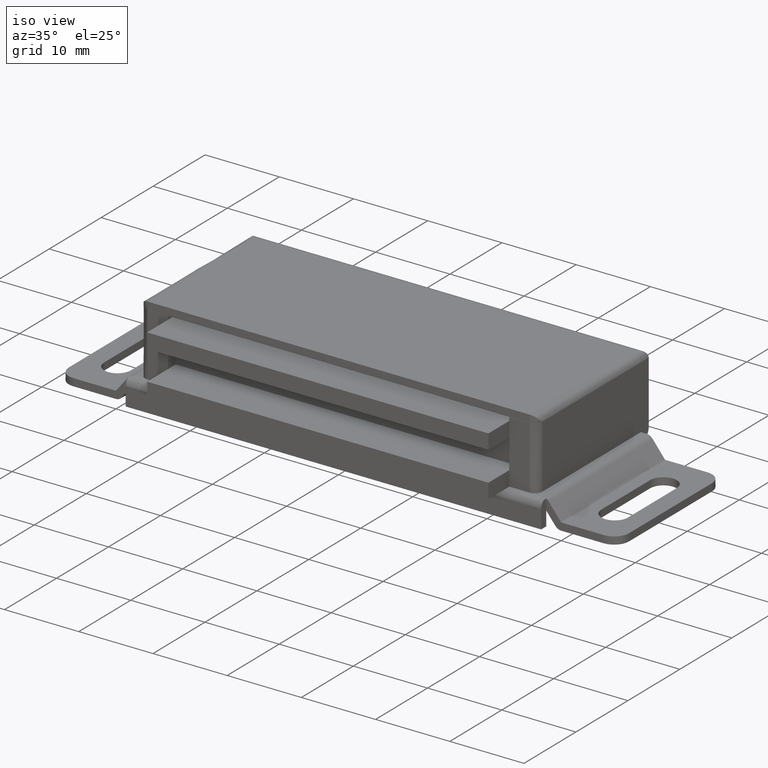
[diagram: clean part render]
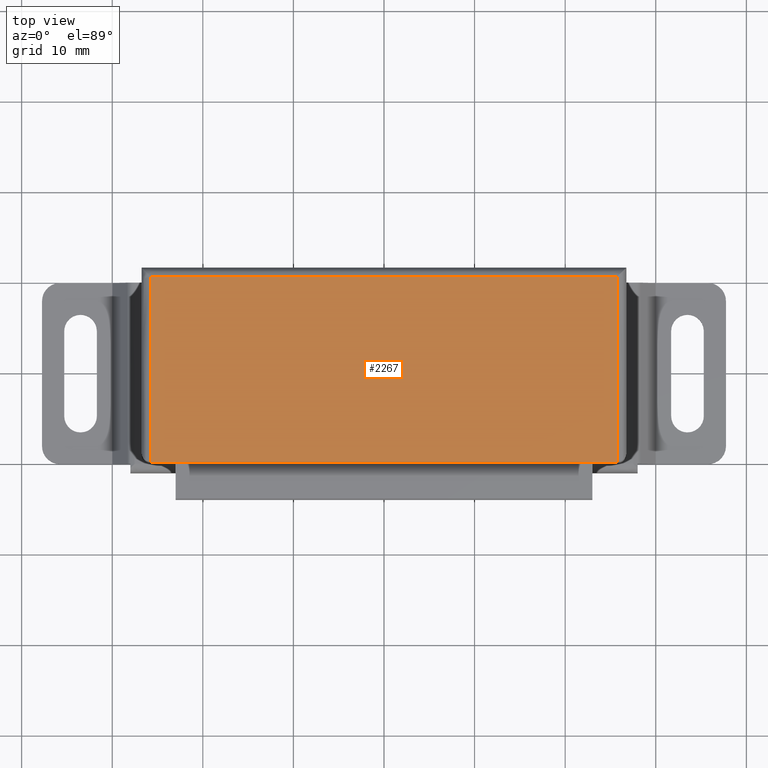
[diagram: tour spotlight — one face highlighted and labeled with its STEP entity id]
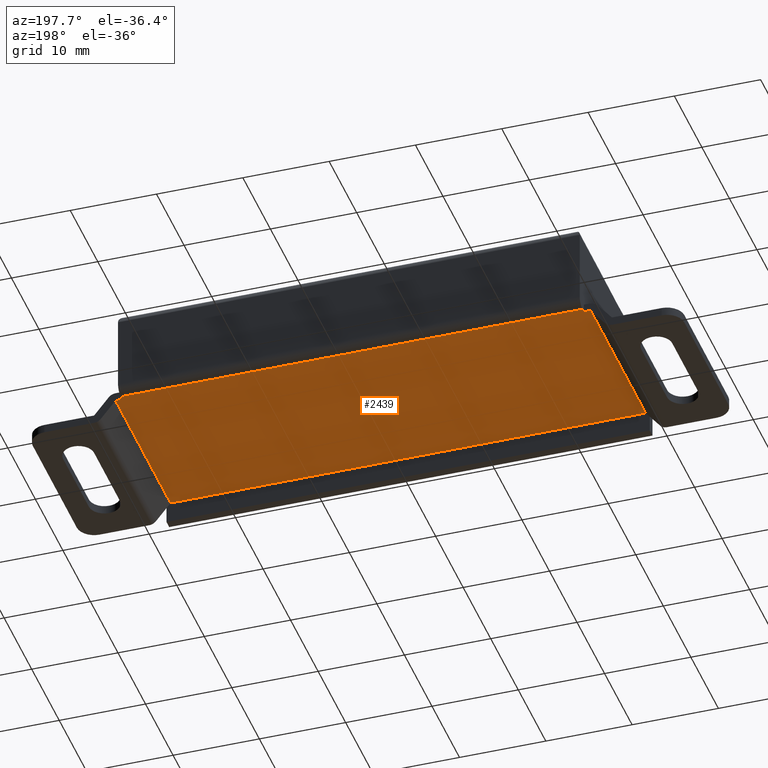
[diagram: tour spotlight — one face highlighted and labeled with its STEP entity id]
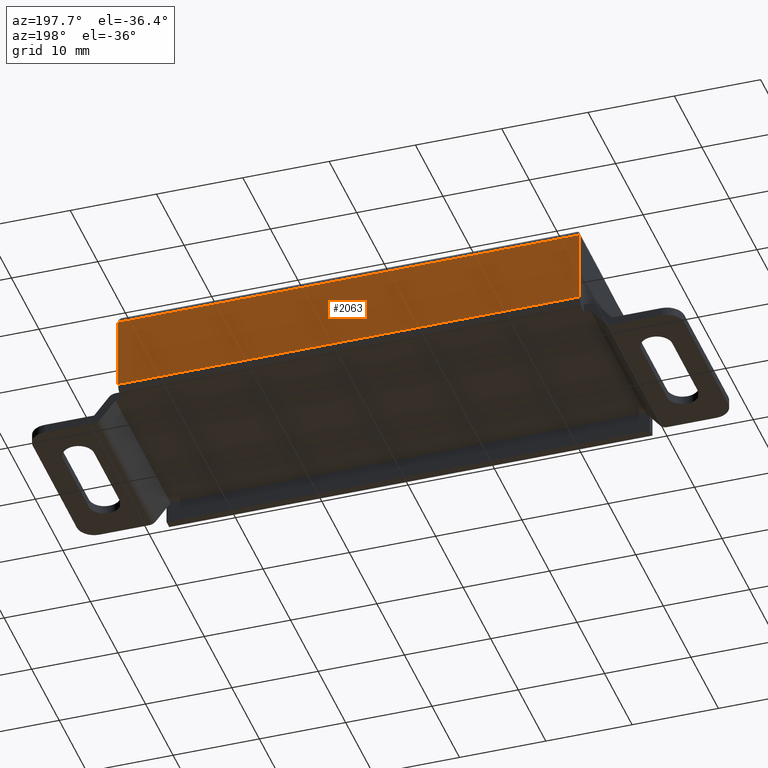
[diagram: tour spotlight — one face highlighted and labeled with its STEP entity id]
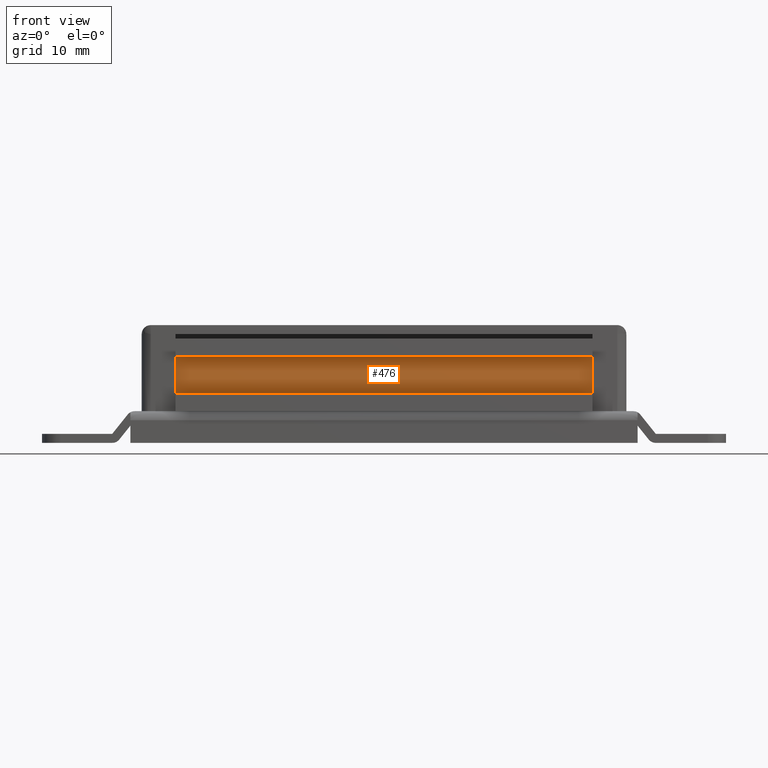
[diagram: tour spotlight — one face highlighted and labeled with its STEP entity id]
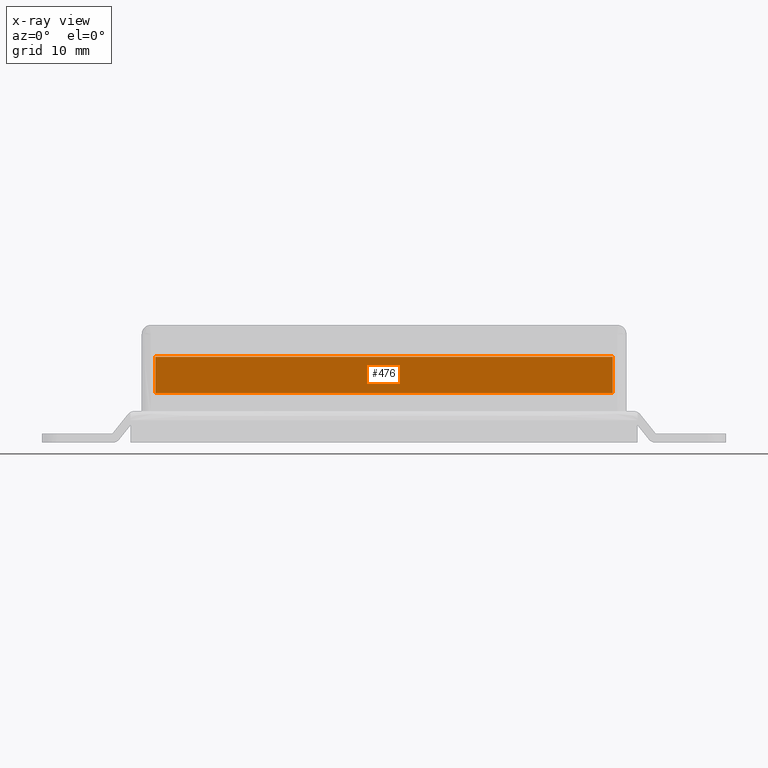
[diagram: x-ray of the same camera — body ghosted, this tour face saturated]
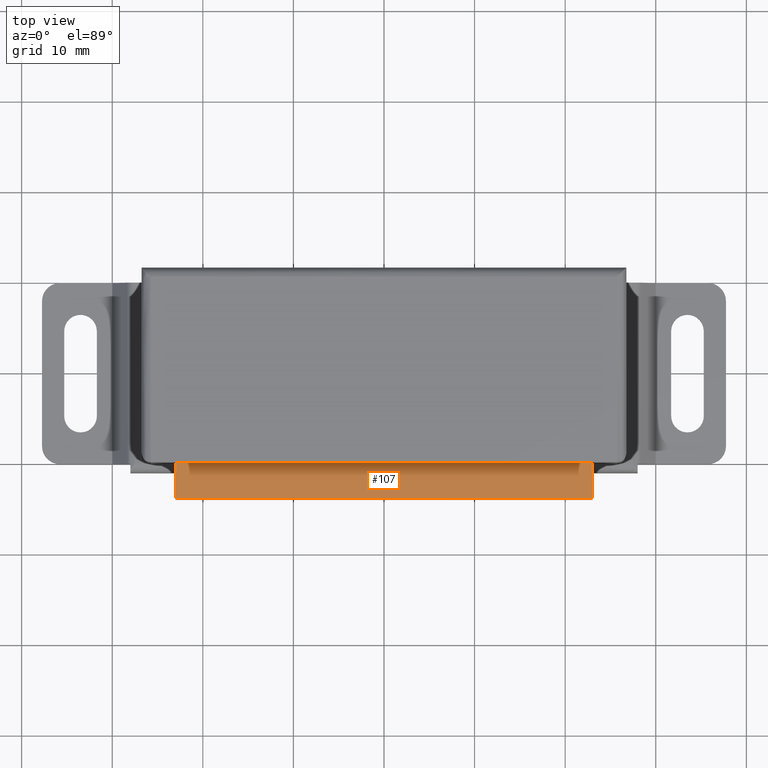
[diagram: tour spotlight — one face highlighted and labeled with its STEP entity id]
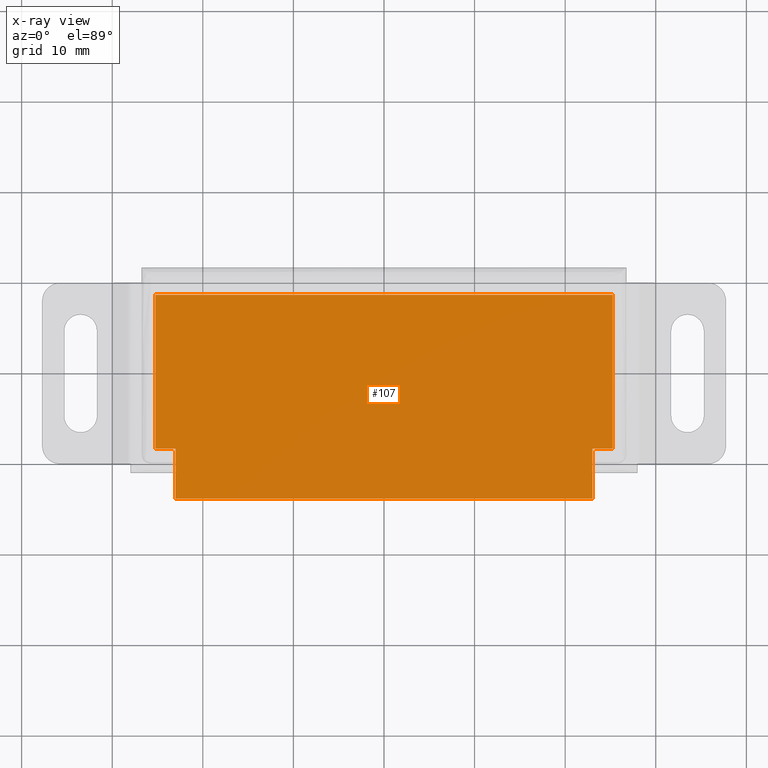
[diagram: x-ray of the same camera — body ghosted, this tour face saturated]
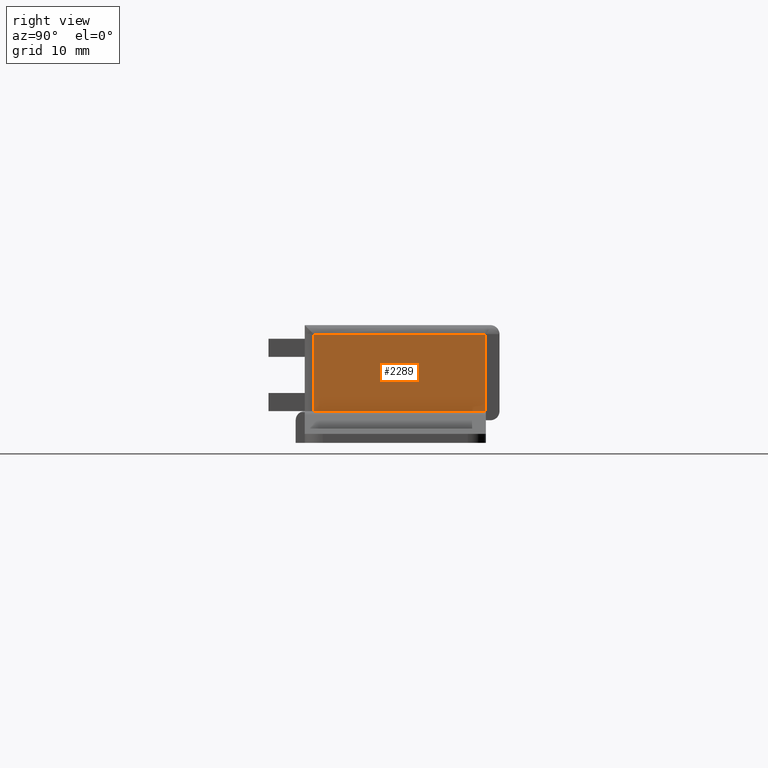
[diagram: tour spotlight — one face highlighted and labeled with its STEP entity id]
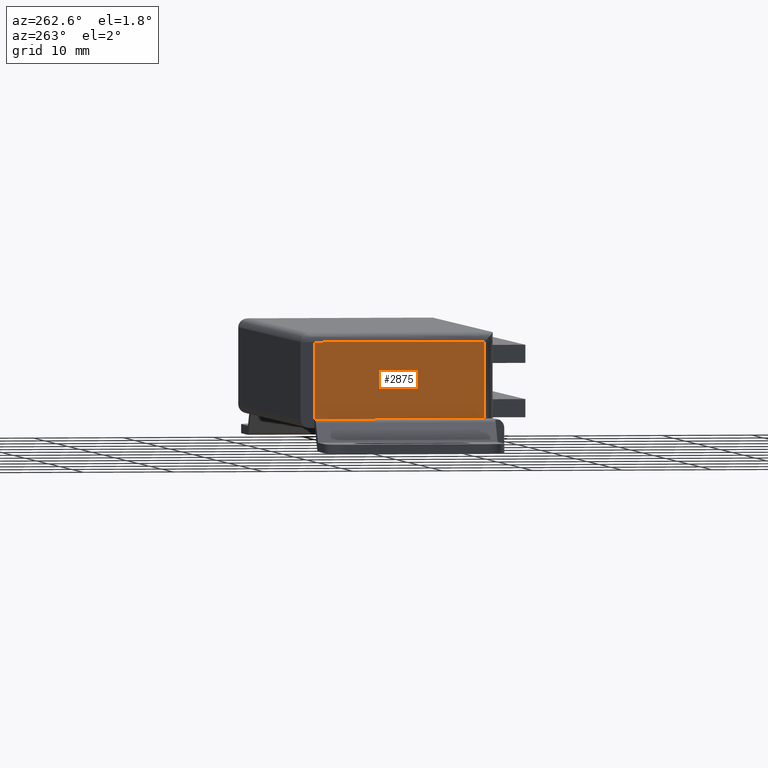
[diagram: tour spotlight — one face highlighted and labeled with its STEP entity id]
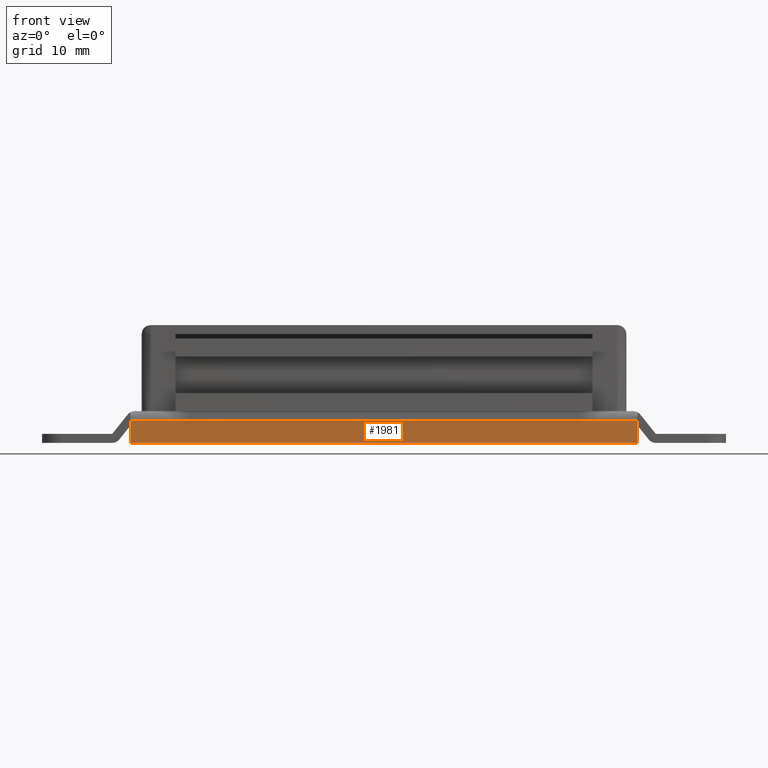
[diagram: tour spotlight — one face highlighted and labeled with its STEP entity id]
A machine part: a face-by-face anatomy tour. The part has 91 B-rep faces; the first image is the clean iso view, then the 8 largest visible faces are spotlighted one at a time (largest first), each with its STEP entity span.

Face 1 — top view, entity #2267. In plain terms, the highlighted face is a freeform B-spline surface patch.
Definition (entity closure, byte-faithful):
#830=CARTESIAN_POINT('',(25.750012999999999,0.499999999999945,12.999984000000101));
#831=VERTEX_POINT('',#830);
#852=CARTESIAN_POINT('',(-25.750012999999999,0.499999999999945,12.999984000000101));
#853=VERTEX_POINT('',#852);
#869=CARTESIAN_POINT('',(25.750012999999999,0.499999999999945,12.999984000000101));
#870=CARTESIAN_POINT('',(-25.750012999999999,0.499999999999945,12.999984000000101));
#871=QUASI_UNIFORM_CURVE('',1,(#869,#870),.UNSPECIFIED.,.F.,.U.);
#872=EDGE_CURVE('',#831,#853,#871,.T.);
#913=CARTESIAN_POINT('',(25.750012999999999,-20.0,12.999984000000101));
#914=VERTEX_POINT('',#913);
#972=CARTESIAN_POINT('',(25.750012999999999,-20.0,12.999984000000101));
#973=CARTESIAN_POINT('',(25.750012999999999,0.499999999999945,12.999984000000101));
#974=QUASI_UNIFORM_CURVE('',1,(#972,#973),.UNSPECIFIED.,.F.,.U.);
#975=EDGE_CURVE('',#914,#831,#974,.T.);
#1007=CARTESIAN_POINT('',(-25.750012999999999,-20.0,12.999984000000101));
#1008=VERTEX_POINT('',#1007);
#1080=CARTESIAN_POINT('',(-25.750012999999999,0.499999999999945,12.999984000000101));
#1081=CARTESIAN_POINT('',(-25.750012999999999,-20.0,12.999984000000101));
#1082=QUASI_UNIFORM_CURVE('',1,(#1080,#1081),.UNSPECIFIED.,.F.,.U.);
#1083=EDGE_CURVE('',#853,#1008,#1082,.T.);
#2252=CARTESIAN_POINT('',(-28.322439682328351,-21.023974960267019,12.999984000000101));
#2253=CARTESIAN_POINT('',(28.322440603220581,-21.023974960267019,12.999984000000101));
#2254=CARTESIAN_POINT('',(-28.322439682328351,1.523975510119812,12.999984000000101));
#2255=CARTESIAN_POINT('',(28.322440603220581,1.523975510119812,12.999984000000101));
#2256=B_SPLINE_SURFACE_WITH_KNOTS('',1,1,((#2252,#2254),(#2253,#2255)),.UNSPECIFIED.,.F.,.F.,.U.,(2,2),(2,2),(0.0,56.644880285548943),(0.0,22.547950470386830),.UNSPECIFIED.);
#2257=ORIENTED_EDGE('',*,*,#975,.T.);
#2258=ORIENTED_EDGE('',*,*,#872,.T.);
#2259=ORIENTED_EDGE('',*,*,#1083,.T.);
#2260=CARTESIAN_POINT('',(25.750012999999999,-20.0,12.999984000000101));
#2261=CARTESIAN_POINT('',(-25.750012999999999,-20.0,12.999984000000101));
#2262=QUASI_UNIFORM_CURVE('',1,(#2260,#2261),.UNSPECIFIED.,.F.,.U.);
#2263=EDGE_CURVE('',#914,#1008,#2262,.T.);
#2264=ORIENTED_EDGE('',*,*,#2263,.F.);
#2265=EDGE_LOOP('',(#2257,#2258,#2259,#2264));
#2266=FACE_OUTER_BOUND('',#2265,.T.);
#2267=ADVANCED_FACE('',(#2266),#2256,.T.);

Face 2 — auxiliary view, entity #2439. In plain terms, the highlighted face is a freeform B-spline surface patch.
Definition (entity closure, byte-faithful):
#771=CARTESIAN_POINT('',(26.750012999999999,0.500000000000000,2.500000000000100));
#772=VERTEX_POINT('',#771);
#786=CARTESIAN_POINT('',(-26.750012999999999,0.500000000000000,2.500000000000100));
#787=VERTEX_POINT('',#786);
#788=CARTESIAN_POINT('',(-26.750012999999999,0.500000000000000,2.500000000000100));
#789=CARTESIAN_POINT('',(26.750012999999999,0.500000000000000,2.500000000000100));
#790=QUASI_UNIFORM_CURVE('',1,(#788,#789),.UNSPECIFIED.,.F.,.U.);
#791=EDGE_CURVE('',#787,#772,#790,.T.);
#1988=CARTESIAN_POINT('',(-27.519349546159599,-20.0,2.500000000000100));
#1989=VERTEX_POINT('',#1988);
#1995=CARTESIAN_POINT('',(27.519367546159199,-20.0,2.500000000000100));
#1996=VERTEX_POINT('',#1995);
#1997=CARTESIAN_POINT('',(-27.519349546159599,-20.0,2.500000000000100));
#1998=CARTESIAN_POINT('',(27.519367546159199,-20.0,2.500000000000100));
#1999=QUASI_UNIFORM_CURVE('',1,(#1997,#1998),.UNSPECIFIED.,.F.,.U.);
#2000=EDGE_CURVE('',#1989,#1996,#1999,.T.);
#2235=CARTESIAN_POINT('',(-26.750012999999999,3.469447E-015,2.500000000000100));
#2236=VERTEX_POINT('',#2235);
#2237=CARTESIAN_POINT('',(-26.750012999999999,3.469447E-015,2.500000000000100));
#2238=CARTESIAN_POINT('',(-26.750012999999999,0.500000000000000,2.500000000000100));
#2239=QUASI_UNIFORM_CURVE('',1,(#2237,#2238),.UNSPECIFIED.,.F.,.U.);
#2240=EDGE_CURVE('',#2236,#787,#2239,.T.);
#2373=CARTESIAN_POINT('',(27.519367546159199,0.0,2.500000000000100));
#2374=VERTEX_POINT('',#2373);
#2380=CARTESIAN_POINT('',(26.750012999999999,3.469447E-015,2.500000000000100));
#2381=VERTEX_POINT('',#2380);
#2382=CARTESIAN_POINT('',(26.750012999999999,3.469447E-015,2.500000000000100));
#2383=CARTESIAN_POINT('',(27.519367546159199,0.0,2.500000000000100));
#2384=QUASI_UNIFORM_CURVE('',1,(#2382,#2383),.UNSPECIFIED.,.F.,.U.);
#2385=EDGE_CURVE('',#2381,#2374,#2384,.T.);
#2406=CARTESIAN_POINT('',(30.268551358244810,-21.023974960267019,2.500000000000100));
#2407=CARTESIAN_POINT('',(-30.268534834498649,-21.023974960267019,2.500000000000100));
#2408=CARTESIAN_POINT('',(30.268551358244810,1.523975510119870,2.500000000000100));
#2409=CARTESIAN_POINT('',(-30.268534834498649,1.523975510119870,2.500000000000100));
#2410=B_SPLINE_SURFACE_WITH_KNOTS('',1,1,((#2406,#2408),(#2407,#2409)),.UNSPECIFIED.,.F.,.F.,.U.,(2,2),(2,2),(0.0,60.537086192743459),(0.0,22.547950470386890),.UNSPECIFIED.);
#2411=ORIENTED_EDGE('',*,*,#2240,.T.);
#2412=ORIENTED_EDGE('',*,*,#791,.T.);
#2413=CARTESIAN_POINT('',(26.750012999999999,3.469447E-015,2.500000000000100));
#2414=CARTESIAN_POINT('',(26.750012999999999,0.500000000000000,2.500000000000100));
#2415=QUASI_UNIFORM_CURVE('',1,(#2413,#2414),.UNSPECIFIED.,.F.,.U.);
#2416=EDGE_CURVE('',#2381,#772,#2415,.T.);
#2417=ORIENTED_EDGE('',*,*,#2416,.F.);
#2418=ORIENTED_EDGE('',*,*,#2385,.T.);
#2419=CARTESIAN_POINT('',(27.519367546159199,0.0,2.500000000000100));
#2420=CARTESIAN_POINT('',(27.519367546159199,-20.0,2.500000000000100));
#2421=QUASI_UNIFORM_CURVE('',1,(#2419,#2420),.UNSPECIFIED.,.F.,.U.);
#2422=EDGE_CURVE('',#2374,#1996,#2421,.T.);
#2423=ORIENTED_EDGE('',*,*,#2422,.T.);
#2424=ORIENTED_EDGE('',*,*,#2000,.F.);
#2425=CARTESIAN_POINT('',(-27.519349546159599,0.0,2.500000000000100));
#2426=VERTEX_POINT('',#2425);
#2427=CARTESIAN_POINT('',(-27.519349546159599,0.0,2.500000000000100));
#2428=CARTESIAN_POINT('',(-27.519349546159599,-20.0,2.500000000000100));
#2429=QUASI_UNIFORM_CURVE('',1,(#2427,#2428),.UNSPECIFIED.,.F.,.U.);
#2430=EDGE_CURVE('',#2426,#1989,#2429,.T.);
#2431=ORIENTED_EDGE('',*,*,#2430,.F.);
#2432=CARTESIAN_POINT('',(-27.519349546159599,0.0,2.500000000000100));
#2433=CARTESIAN_POINT('',(-26.750012999999999,3.469447E-015,2.500000000000100));
#2434=QUASI_UNIFORM_CURVE('',1,(#2432,#2433),.UNSPECIFIED.,.F.,.U.);
#2435=EDGE_CURVE('',#2426,#2236,#2434,.T.);
#2436=ORIENTED_EDGE('',*,*,#2435,.T.);
#2437=EDGE_LOOP('',(#2411,#2412,#2417,#2418,#2423,#2424,#2431,#2436));
#2438=FACE_OUTER_BOUND('',#2437,.T.);
#2439=ADVANCED_FACE('',(#2438),#2410,.T.);

Face 3 — auxiliary view, entity #2063. In plain terms, the highlighted face is a freeform B-spline surface patch.
Definition (entity closure, byte-faithful):
#773=CARTESIAN_POINT('',(26.750012999999999,1.500000000000000,3.500000000000100));
#774=VERTEX_POINT('',#773);
#793=CARTESIAN_POINT('',(-26.750012999999999,1.500000000000000,3.500000000000100));
#794=VERTEX_POINT('',#793);
#806=CARTESIAN_POINT('',(26.750012999999999,1.500000000000000,3.500000000000100));
#807=CARTESIAN_POINT('',(-26.750012999999999,1.500000000000000,3.500000000000100));
#808=QUASI_UNIFORM_CURVE('',1,(#806,#807),.UNSPECIFIED.,.F.,.U.);
#809=EDGE_CURVE('',#774,#794,#808,.T.);
#828=CARTESIAN_POINT('',(26.750012999999999,1.500000000000000,11.999984000000101));
#829=VERTEX_POINT('',#828);
#845=CARTESIAN_POINT('',(-26.750012999999999,1.500000000000000,11.999984000000101));
#846=VERTEX_POINT('',#845);
#847=CARTESIAN_POINT('',(-26.750012999999999,1.500000000000000,11.999984000000101));
#848=CARTESIAN_POINT('',(26.750012999999999,1.500000000000000,11.999984000000101));
#849=QUASI_UNIFORM_CURVE('',1,(#847,#848),.UNSPECIFIED.,.F.,.U.);
#850=EDGE_CURVE('',#846,#829,#849,.T.);
#2044=CARTESIAN_POINT('',(-29.422339697226530,1.500000000000000,12.424558024741950));
#2045=CARTESIAN_POINT('',(-29.422339697226530,1.500000000000000,3.075425595279359));
#2046=CARTESIAN_POINT('',(29.422340653881552,1.500000000000000,12.424558024741950));
#2047=CARTESIAN_POINT('',(29.422340653881552,1.500000000000000,3.075425595279359));
#2048=B_SPLINE_SURFACE_WITH_KNOTS('',1,1,((#2044,#2046),(#2045,#2047)),.UNSPECIFIED.,.F.,.F.,.U.,(2,2),(2,2),(0.0,9.349132429462589),(0.0,58.844680351108089),.UNSPECIFIED.);
#2049=CARTESIAN_POINT('',(26.750012999999999,1.500000000000000,3.500000000000100));
#2050=CARTESIAN_POINT('',(26.750012999999999,1.500000000000000,11.999984000000101));
#2051=QUASI_UNIFORM_CURVE('',1,(#2049,#2050),.UNSPECIFIED.,.F.,.U.);
#2052=EDGE_CURVE('',#774,#829,#2051,.T.);
#2053=ORIENTED_EDGE('',*,*,#2052,.F.);
#2054=ORIENTED_EDGE('',*,*,#809,.T.);
#2055=CARTESIAN_POINT('',(-26.750012999999999,1.500000000000000,3.500000000000100));
#2056=CARTESIAN_POINT('',(-26.750012999999999,1.500000000000000,11.999984000000101));
#2057=QUASI_UNIFORM_CURVE('',1,(#2055,#2056),.UNSPECIFIED.,.F.,.U.);
#2058=EDGE_CURVE('',#794,#846,#2057,.T.);
#2059=ORIENTED_EDGE('',*,*,#2058,.T.);
#2060=ORIENTED_EDGE('',*,*,#850,.T.);
#2061=EDGE_LOOP('',(#2053,#2054,#2059,#2060));
#2062=FACE_OUTER_BOUND('',#2061,.T.);
#2063=ADVANCED_FACE('',(#2062),#2048,.F.);

Face 4 — front view, entity #476. An x-ray twin of the same camera follows (body ghosted, this face saturated) — the face is partly hidden behind the body. In plain terms, the highlighted face is a freeform B-spline surface patch.
Definition (entity closure, byte-faithful):
#346=CARTESIAN_POINT('',(-25.249995000000101,-18.500000000000000,9.499984000000000));
#347=VERTEX_POINT('',#346);
#348=CARTESIAN_POINT('',(25.250012999999999,-18.500000000000000,9.499984000000000));
#349=VERTEX_POINT('',#348);
#350=CARTESIAN_POINT('',(-25.249995000000101,-18.500000000000000,9.499984000000000));
#351=CARTESIAN_POINT('',(25.250012999999999,-18.500000000000000,9.499984000000000));
#352=QUASI_UNIFORM_CURVE('',1,(#350,#351),.UNSPECIFIED.,.F.,.U.);
#353=EDGE_CURVE('',#347,#349,#352,.T.);
#382=CARTESIAN_POINT('',(-25.249995000000101,-18.500000000000000,5.500000000000000));
#383=VERTEX_POINT('',#382);
#384=CARTESIAN_POINT('',(25.250012999999999,-18.500000000000000,5.500000000000000));
#385=VERTEX_POINT('',#384);
#386=CARTESIAN_POINT('',(-25.249995000000101,-18.500000000000000,5.500000000000000));
#387=CARTESIAN_POINT('',(25.250012999999999,-18.500000000000000,5.500000000000000));
#388=QUASI_UNIFORM_CURVE('',1,(#386,#387),.UNSPECIFIED.,.F.,.U.);
#389=EDGE_CURVE('',#383,#385,#388,.T.);
#425=CARTESIAN_POINT('',(-25.249995000000101,-18.500000000000000,5.500000000000000));
#426=CARTESIAN_POINT('',(-25.249995000000101,-18.500000000000000,9.499984000000000));
#427=QUASI_UNIFORM_CURVE('',1,(#425,#426),.UNSPECIFIED.,.F.,.U.);
#428=EDGE_CURVE('',#383,#347,#427,.T.);
#455=CARTESIAN_POINT('',(25.250012999999999,-18.500000000000000,5.500000000000000));
#456=CARTESIAN_POINT('',(25.250012999999999,-18.500000000000000,9.499984000000000));
#457=QUASI_UNIFORM_CURVE('',1,(#455,#456),.UNSPECIFIED.,.F.,.U.);
#458=EDGE_CURVE('',#385,#349,#457,.T.);
#465=CARTESIAN_POINT('',(-27.772469827663350,-18.500000000000000,9.699782967753327));
#466=CARTESIAN_POINT('',(-27.772469827663350,-18.500000000000000,5.300200710382879));
#467=CARTESIAN_POINT('',(27.772489633684270,-18.500000000000000,9.699782967753327));
#468=CARTESIAN_POINT('',(27.772489633684270,-18.500000000000000,5.300200710382879));
#469=B_SPLINE_SURFACE_WITH_KNOTS('',1,1,((#465,#467),(#466,#468)),.UNSPECIFIED.,.F.,.F.,.U.,(2,2),(2,2),(0.0,4.399582257370448),(0.0,55.544959461347617),.UNSPECIFIED.);
#470=ORIENTED_EDGE('',*,*,#353,.F.);
#471=ORIENTED_EDGE('',*,*,#428,.F.);
#472=ORIENTED_EDGE('',*,*,#389,.T.);
#473=ORIENTED_EDGE('',*,*,#458,.T.);
#474=EDGE_LOOP('',(#470,#471,#472,#473));
#475=FACE_OUTER_BOUND('',#474,.T.);
#476=ADVANCED_FACE('',(#475),#469,.T.);

Face 5 — top view, entity #107. An x-ray twin of the same camera follows (body ghosted, this face saturated) — the face is partly hidden behind the body. In plain terms, the highlighted face is a freeform B-spline surface patch.
Definition (entity closure, byte-faithful):
#44=CARTESIAN_POINT('',(-27.772469827663350,-0.376125043609366,11.499984000000101));
#45=CARTESIAN_POINT('',(27.772489633684270,-0.376125043609366,11.499984000000101));
#46=CARTESIAN_POINT('',(-27.772469827663350,-25.123875559887669,11.499984000000101));
#47=CARTESIAN_POINT('',(27.772489633684270,-25.123875559887669,11.499984000000101));
#48=B_SPLINE_SURFACE_WITH_KNOTS('',1,1,((#44,#46),(#45,#47)),.UNSPECIFIED.,.F.,.F.,.U.,(2,2),(2,2),(0.0,55.544959461347617),(0.0,24.747750516278298),.UNSPECIFIED.);
#49=CARTESIAN_POINT('',(-25.249995000000101,-18.500000000000000,11.499984000000079));
#50=VERTEX_POINT('',#49);
#51=CARTESIAN_POINT('',(-25.249995000000101,-1.500000000000000,11.499984000000079));
#52=VERTEX_POINT('',#51);
#53=CARTESIAN_POINT('',(-25.249995000000101,-18.500000000000000,11.499984000000079));
#54=CARTESIAN_POINT('',(-25.249995000000101,-1.500000000000000,11.499984000000079));
#55=QUASI_UNIFORM_CURVE('',1,(#53,#54),.UNSPECIFIED.,.F.,.U.);
#56=EDGE_CURVE('',#50,#52,#55,.T.);
#57=ORIENTED_EDGE('',*,*,#56,.F.);
#58=CARTESIAN_POINT('',(-22.999991000000001,-18.500000000000000,11.499984000000079));
#59=VERTEX_POINT('',#58);
#60=CARTESIAN_POINT('',(-22.999991000000001,-18.500000000000000,11.499984000000079));
#61=CARTESIAN_POINT('',(-25.249995000000101,-18.500000000000000,11.499984000000079));
#62=QUASI_UNIFORM_CURVE('',1,(#60,#61),.UNSPECIFIED.,.F.,.U.);
#63=EDGE_CURVE('',#59,#50,#62,.T.);
#64=ORIENTED_EDGE('',*,*,#63,.F.);
#65=CARTESIAN_POINT('',(-22.999991000000001,-24.0,11.499984000000079));
#66=VERTEX_POINT('',#65);
#67=CARTESIAN_POINT('',(-22.999991000000001,-24.0,11.499984000000079));
#68=CARTESIAN_POINT('',(-22.999991000000001,-18.500000000000000,11.499984000000079));
#69=QUASI_UNIFORM_CURVE('',1,(#67,#68),.UNSPECIFIED.,.F.,.U.);
#70=EDGE_CURVE('',#66,#59,#69,.T.);
#71=ORIENTED_EDGE('',*,*,#70,.F.);
#72=CARTESIAN_POINT('',(23.000012999999999,-24.0,11.499984000000079));
#73=VERTEX_POINT('',#72);
#74=CARTESIAN_POINT('',(23.000012999999999,-24.0,11.499984000000079));
#75=CARTESIAN_POINT('',(-22.999991000000001,-24.0,11.499984000000079));
#76=QUASI_UNIFORM_CURVE('',1,(#74,#75),.UNSPECIFIED.,.F.,.U.);
#77=EDGE_CURVE('',#73,#66,#76,.T.);
#78=ORIENTED_EDGE('',*,*,#77,.F.);
#79=CARTESIAN_POINT('',(23.000012999999999,-18.500000000000000,11.499984000000079));
#80=VERTEX_POINT('',#79);
#81=CARTESIAN_POINT('',(23.000012999999999,-18.500000000000000,11.499984000000079));
#82=CARTESIAN_POINT('',(23.000012999999999,-24.0,11.499984000000079));
#83=QUASI_UNIFORM_CURVE('',1,(#81,#82),.UNSPECIFIED.,.F.,.U.);
#84=EDGE_CURVE('',#80,#73,#83,.T.);
#85=ORIENTED_EDGE('',*,*,#84,.F.);
#86=CARTESIAN_POINT('',(25.250012999999999,-18.500000000000000,11.499984000000079));
#87=VERTEX_POINT('',#86);
#88=CARTESIAN_POINT('',(25.250012999999999,-18.500000000000000,11.499984000000079));
#89=CARTESIAN_POINT('',(23.000012999999999,-18.500000000000000,11.499984000000079));
#90=QUASI_UNIFORM_CURVE('',1,(#88,#89),.UNSPECIFIED.,.F.,.U.);
#91=EDGE_CURVE('',#87,#80,#90,.T.);
#92=ORIENTED_EDGE('',*,*,#91,.F.);
#93=CARTESIAN_POINT('',(25.250012999999999,-1.500000000000000,11.499984000000079));
#94=VERTEX_POINT('',#93);
#95=CARTESIAN_POINT('',(25.250012999999999,-1.500000000000000,11.499984000000079));
#96=CARTESIAN_POINT('',(25.250012999999999,-18.500000000000000,11.499984000000079));
#97=QUASI_UNIFORM_CURVE('',1,(#95,#96),.UNSPECIFIED.,.F.,.U.);
#98=EDGE_CURVE('',#94,#87,#97,.T.);
#99=ORIENTED_EDGE('',*,*,#98,.F.);
#100=CARTESIAN_POINT('',(-25.249995000000101,-1.500000000000000,11.499984000000079));
#101=CARTESIAN_POINT('',(25.250012999999999,-1.500000000000000,11.499984000000079));
#102=QUASI_UNIFORM_CURVE('',1,(#100,#101),.UNSPECIFIED.,.F.,.U.);
#103=EDGE_CURVE('',#52,#94,#102,.T.);
#104=ORIENTED_EDGE('',*,*,#103,.F.);
#105=EDGE_LOOP('',(#57,#64,#71,#78,#85,#92,#99,#104));
#106=FACE_OUTER_BOUND('',#105,.T.);
#107=ADVANCED_FACE('',(#106),#48,.F.);

Face 6 — right view, entity #2289. In plain terms, the highlighted face is a freeform B-spline surface patch.
Definition (entity closure, byte-faithful):
#891=CARTESIAN_POINT('',(26.750012999999999,-19.0,3.500000000000100));
#892=VERTEX_POINT('',#891);
#906=CARTESIAN_POINT('',(26.750012999999999,-19.0,11.999984000000101));
#907=VERTEX_POINT('',#906);
#908=CARTESIAN_POINT('',(26.750012999999999,-19.0,11.999984000000101));
#909=CARTESIAN_POINT('',(26.750012999999999,-19.0,3.500000000000100));
#910=QUASI_UNIFORM_CURVE('',1,(#908,#909),.UNSPECIFIED.,.F.,.U.);
#911=EDGE_CURVE('',#907,#892,#910,.T.);
#978=CARTESIAN_POINT('',(26.750012999999999,-0.010000000000003,11.999984000000101));
#979=VERTEX_POINT('',#978);
#980=CARTESIAN_POINT('',(26.750012999999999,-0.010000000000003,11.999984000000101));
#981=CARTESIAN_POINT('',(26.750012999999999,-19.0,11.999984000000101));
#982=QUASI_UNIFORM_CURVE('',1,(#980,#981),.UNSPECIFIED.,.F.,.U.);
#983=EDGE_CURVE('',#979,#907,#982,.T.);
#2268=CARTESIAN_POINT('',(26.750012999999999,-19.948550463193691,12.424558024741950));
#2269=CARTESIAN_POINT('',(26.750012999999999,-19.948550463193691,3.075425595279360));
#2270=CARTESIAN_POINT('',(26.750012999999999,0.938550972545232,12.424558024741950));
#2271=CARTESIAN_POINT('',(26.750012999999999,0.938550972545232,3.075425595279360));
#2272=B_SPLINE_SURFACE_WITH_KNOTS('',1,1,((#2268,#2270),(#2269,#2271)),.UNSPECIFIED.,.F.,.F.,.U.,(2,2),(2,2),(0.0,9.349132429462589),(0.0,20.887101435738931),.UNSPECIFIED.);
#2273=ORIENTED_EDGE('',*,*,#983,.T.);
#2274=ORIENTED_EDGE('',*,*,#911,.T.);
#2275=CARTESIAN_POINT('',(26.750012999999999,-0.009999999999954,3.500000000000100));
#2276=VERTEX_POINT('',#2275);
#2277=CARTESIAN_POINT('',(26.750012999999999,-0.009999999999954,3.500000000000100));
#2278=CARTESIAN_POINT('',(26.750012999999999,-19.0,3.500000000000100));
#2279=QUASI_UNIFORM_CURVE('',1,(#2277,#2278),.UNSPECIFIED.,.F.,.U.);
#2280=EDGE_CURVE('',#2276,#892,#2279,.T.);
#2281=ORIENTED_EDGE('',*,*,#2280,.F.);
#2282=CARTESIAN_POINT('',(26.750012999999999,-0.009999999999954,3.500000000000100));
#2283=CARTESIAN_POINT('',(26.750012999999999,-0.010000000000003,11.999984000000101));
#2284=QUASI_UNIFORM_CURVE('',1,(#2282,#2283),.UNSPECIFIED.,.F.,.U.);
#2285=EDGE_CURVE('',#2276,#979,#2284,.T.);
#2286=ORIENTED_EDGE('',*,*,#2285,.T.);
#2287=EDGE_LOOP('',(#2273,#2274,#2281,#2286));
#2288=FACE_OUTER_BOUND('',#2287,.T.);
#2289=ADVANCED_FACE('',(#2288),#2272,.T.);

Face 7 — auxiliary view, entity #2875. In plain terms, the highlighted face is a freeform B-spline surface patch.
Definition (entity closure, byte-faithful):
#1009=CARTESIAN_POINT('',(-26.750012999999999,-19.0,11.999984000000101));
#1010=VERTEX_POINT('',#1009);
#1024=CARTESIAN_POINT('',(-26.750012999999999,-19.0,3.500000000000100));
#1025=VERTEX_POINT('',#1024);
#1026=CARTESIAN_POINT('',(-26.750012999999999,-19.0,3.500000000000100));
#1027=CARTESIAN_POINT('',(-26.750012999999999,-19.0,11.999984000000101));
#1028=QUASI_UNIFORM_CURVE('',1,(#1026,#1027),.UNSPECIFIED.,.F.,.U.);
#1029=EDGE_CURVE('',#1025,#1010,#1028,.T.);
#1093=CARTESIAN_POINT('',(-26.750012999999999,-0.010000000000003,11.999984000000101));
#1094=VERTEX_POINT('',#1093);
#1100=CARTESIAN_POINT('',(-26.750012999999999,-19.0,11.999984000000101));
#1101=CARTESIAN_POINT('',(-26.750012999999999,-0.010000000000003,11.999984000000101));
#1102=QUASI_UNIFORM_CURVE('',1,(#1100,#1101),.UNSPECIFIED.,.F.,.U.);
#1103=EDGE_CURVE('',#1010,#1094,#1102,.T.);
#2725=CARTESIAN_POINT('',(-26.750012999999999,-0.009999999999954,3.500000000000100));
#2726=VERTEX_POINT('',#2725);
#2732=CARTESIAN_POINT('',(-26.750012999999999,-0.010000000000003,11.999984000000101));
#2733=CARTESIAN_POINT('',(-26.750012999999999,-0.009999999999954,3.500000000000100));
#2734=QUASI_UNIFORM_CURVE('',1,(#2732,#2733),.UNSPECIFIED.,.F.,.U.);
#2735=EDGE_CURVE('',#1094,#2726,#2734,.T.);
#2788=CARTESIAN_POINT('',(-26.750012999999999,-0.009999999999954,3.500000000000100));
#2789=CARTESIAN_POINT('',(-26.750012999999999,-19.0,3.500000000000100));
#2790=QUASI_UNIFORM_CURVE('',1,(#2788,#2789),.UNSPECIFIED.,.F.,.U.);
#2791=EDGE_CURVE('',#2726,#1025,#2790,.T.);
#2864=CARTESIAN_POINT('',(-26.750012999999999,-19.948550463193701,3.075425846042631));
#2865=CARTESIAN_POINT('',(-26.750012999999999,-19.948550463193701,12.424557773978680));
#2866=CARTESIAN_POINT('',(-26.750012999999999,0.938550972545234,3.075425846042631));
#2867=CARTESIAN_POINT('',(-26.750012999999999,0.938550972545234,12.424557773978680));
#2868=B_SPLINE_SURFACE_WITH_KNOTS('',1,1,((#2864,#2866),(#2865,#2867)),.UNSPECIFIED.,.F.,.F.,.U.,(2,2),(2,2),(0.0,9.349131927936046),(0.0,20.887101435738931),.UNSPECIFIED.);
#2869=ORIENTED_EDGE('',*,*,#2791,.T.);
#2870=ORIENTED_EDGE('',*,*,#1029,.T.);
#2871=ORIENTED_EDGE('',*,*,#1103,.T.);
#2872=ORIENTED_EDGE('',*,*,#2735,.T.);
#2873=EDGE_LOOP('',(#2869,#2870,#2871,#2872));
#2874=FACE_OUTER_BOUND('',#2873,.T.);
#2875=ADVANCED_FACE('',(#2874),#2868,.T.);

Face 8 — front view, entity #1981. In plain terms, the highlighted face is a freeform B-spline surface patch.
Definition (entity closure, byte-faithful):
#1146=CARTESIAN_POINT('',(-27.999993000000000,-21.0,2.500000000000100));
#1147=VERTEX_POINT('',#1146);
#1158=CARTESIAN_POINT('',(27.999993000000000,-21.0,2.500000000000100));
#1159=VERTEX_POINT('',#1158);
#1160=CARTESIAN_POINT('',(27.999993000000000,-21.0,2.500000000000100));
#1161=CARTESIAN_POINT('',(-27.999993000000000,-21.0,2.500000000000100));
#1162=QUASI_UNIFORM_CURVE('',1,(#1160,#1161),.UNSPECIFIED.,.F.,.U.);
#1163=EDGE_CURVE('',#1159,#1147,#1162,.T.);
#1883=CARTESIAN_POINT('',(-27.999993000000000,-21.0,0.0));
#1884=VERTEX_POINT('',#1883);
#1885=CARTESIAN_POINT('',(-27.999993000000000,-21.0,2.500000000000100));
#1886=CARTESIAN_POINT('',(-27.999993000000000,-21.0,0.0));
#1887=QUASI_UNIFORM_CURVE('',1,(#1885,#1886),.UNSPECIFIED.,.F.,.U.);
#1888=EDGE_CURVE('',#1147,#1884,#1887,.T.);
#1921=CARTESIAN_POINT('',(27.999993000000000,-21.0,0.0));
#1922=VERTEX_POINT('',#1921);
#1923=CARTESIAN_POINT('',(27.999993000000000,-21.0,2.500000000000100));
#1924=CARTESIAN_POINT('',(27.999993000000000,-21.0,0.0));
#1925=QUASI_UNIFORM_CURVE('',1,(#1923,#1924),.UNSPECIFIED.,.F.,.U.);
#1926=EDGE_CURVE('',#1159,#1922,#1925,.T.);
#1962=CARTESIAN_POINT('',(27.999993000000000,-21.0,0.0));
#1963=CARTESIAN_POINT('',(-27.999993000000000,-21.0,0.0));
#1964=QUASI_UNIFORM_CURVE('',1,(#1962,#1963),.UNSPECIFIED.,.F.,.U.);
#1965=EDGE_CURVE('',#1922,#1884,#1964,.T.);
#1970=CARTESIAN_POINT('',(-30.797191666473370,-21.0,-0.124874995154520));
#1971=CARTESIAN_POINT('',(-30.797191666473370,-21.0,2.624875062209847));
#1972=CARTESIAN_POINT('',(30.797193669188928,-21.0,-0.124874995154520));
#1973=CARTESIAN_POINT('',(30.797193669188928,-21.0,2.624875062209847));
#1974=B_SPLINE_SURFACE_WITH_KNOTS('',1,1,((#1970,#1972),(#1971,#1973)),.UNSPECIFIED.,.F.,.F.,.U.,(2,2),(2,2),(0.0,2.749750057364366),(0.0,61.594385335662302),.UNSPECIFIED.);
#1975=ORIENTED_EDGE('',*,*,#1926,.F.);
#1976=ORIENTED_EDGE('',*,*,#1163,.T.);
#1977=ORIENTED_EDGE('',*,*,#1888,.T.);
#1978=ORIENTED_EDGE('',*,*,#1965,.F.);
#1979=EDGE_LOOP('',(#1975,#1976,#1977,#1978));
#1980=FACE_OUTER_BOUND('',#1979,.T.);
#1981=ADVANCED_FACE('',(#1980),#1974,.F.);